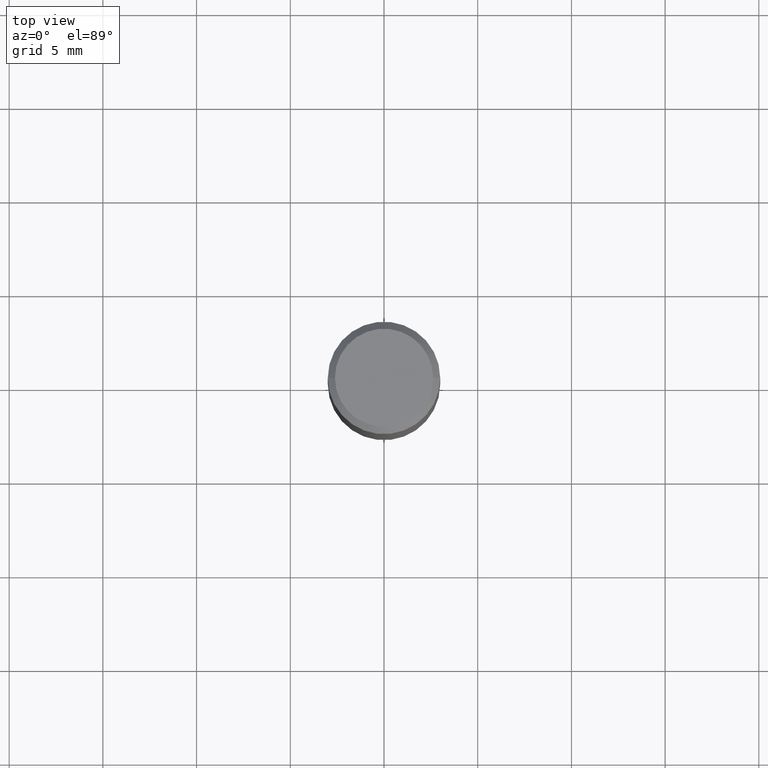
[diagram: clean part render]
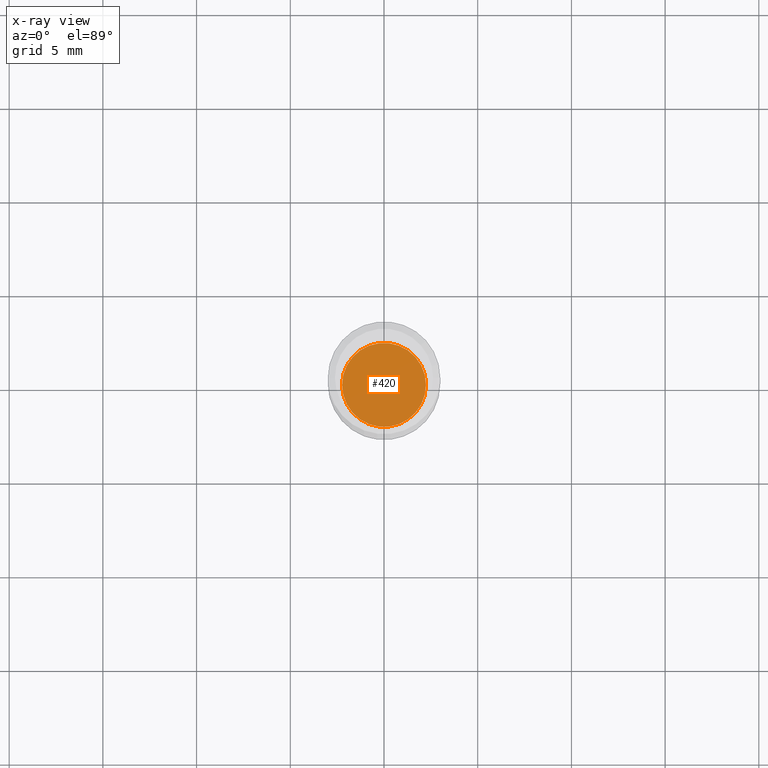
[diagram: x-ray — body ghosted, one internal face saturated and labeled with its STEP entity id]
A machine part, top view, then the same camera in x-ray: the body is ghosted and one INTERNAL B-rep face — a face not visible from any outside direction — is saturated and labeled: STEP entity #420.
In plain terms, the highlighted planar face has unit normal (-0, 0, 1).
Its self-contained STEP definition (entity closure, byte-faithful):
#1 = EDGE_LOOP ( 'NONE', ( #60, #261 ) ) ;
#22 = CIRCLE ( 'NONE', #228, 0.08809999999999999776 ) ;
#23 = CARTESIAN_POINT ( 'NONE',  ( 2.127802408261687534E-29, -3.037937912927421601E-15, -0.8701000000000000956 ) ) ;
#45 = DIRECTION ( 'NONE',  ( 1.000000000000000000, -6.982962677686265922E-15, 4.876176775795935793E-29 ) ) ;
#52 = PLANE ( 'NONE',  #147 ) ;
#60 = ORIENTED_EDGE ( 'NONE', *, *, #69, .F. ) ;
#69 = EDGE_CURVE ( 'NONE', #93, #338, #456, .T. ) ;
#93 = VERTEX_POINT ( 'NONE', #252 ) ;
#111 = CARTESIAN_POINT ( 'NONE',  ( 2.127802408261687534E-29, -3.037937912927420812E-15, -0.8700999999999999845 ) ) ;
#124 = DIRECTION ( 'NONE',  ( -2.445468806185136597E-29, 3.491481338843145583E-15, 1.000000000000000000 ) ) ;
#130 = DIRECTION ( 'NONE',  ( -2.438088387897960049E-29, 3.491481338843145188E-15, 1.000000000000000000 ) ) ;
#147 = AXIS2_PLACEMENT_3D ( 'NONE', #23, #130, #45 ) ;
#228 = AXIS2_PLACEMENT_3D ( 'NONE', #111, #439, #412 ) ;
#251 = AXIS2_PLACEMENT_3D ( 'NONE', #309, #124, #254 ) ;
#252 = CARTESIAN_POINT ( 'NONE',  ( 0.08809999999999999776, -3.653136924831581152E-15, -0.8700999999999999845 ) ) ;
#254 = DIRECTION ( 'NONE',  ( 1.000000000000000000, -6.982962677686264344E-15, 0.000000000000000000 ) ) ;
#261 = ORIENTED_EDGE ( 'NONE', *, *, #272, .F. ) ;
#272 = EDGE_CURVE ( 'NONE', #338, #93, #22, .T. ) ;
#309 = CARTESIAN_POINT ( 'NONE',  ( 2.127802408261687534E-29, -3.037937912927420812E-15, -0.8700999999999999845 ) ) ;
#338 = VERTEX_POINT ( 'NONE', #409 ) ;
#384 = FACE_OUTER_BOUND ( 'NONE', #1, .T. ) ;
#409 = CARTESIAN_POINT ( 'NONE',  ( -0.08809999999999999776, -2.409300535548661264E-15, -0.8700999999999999845 ) ) ;
#412 = DIRECTION ( 'NONE',  ( 1.000000000000000000, -6.982962677686264344E-15, 0.000000000000000000 ) ) ;
#420 = ADVANCED_FACE ( 'NONE', ( #384 ), #52, .F. ) ;
#439 = DIRECTION ( 'NONE',  ( -2.445468806185136597E-29, 3.491481338843145583E-15, 1.000000000000000000 ) ) ;
#456 = CIRCLE ( 'NONE', #251, 0.08809999999999999776 ) ;